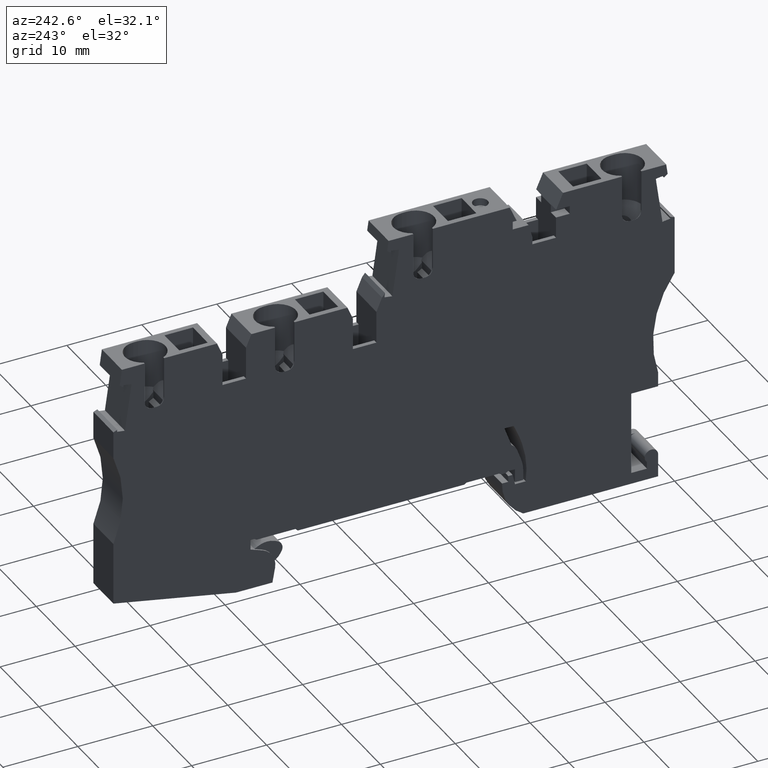
[diagram: clean part render]
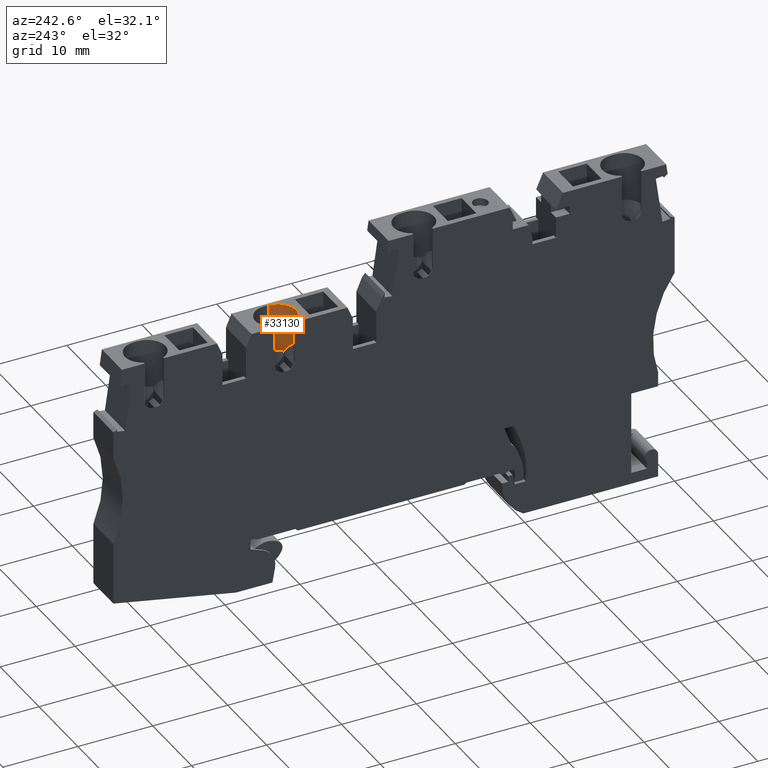
[diagram: same view with one face highlighted and labeled with its STEP entity id]
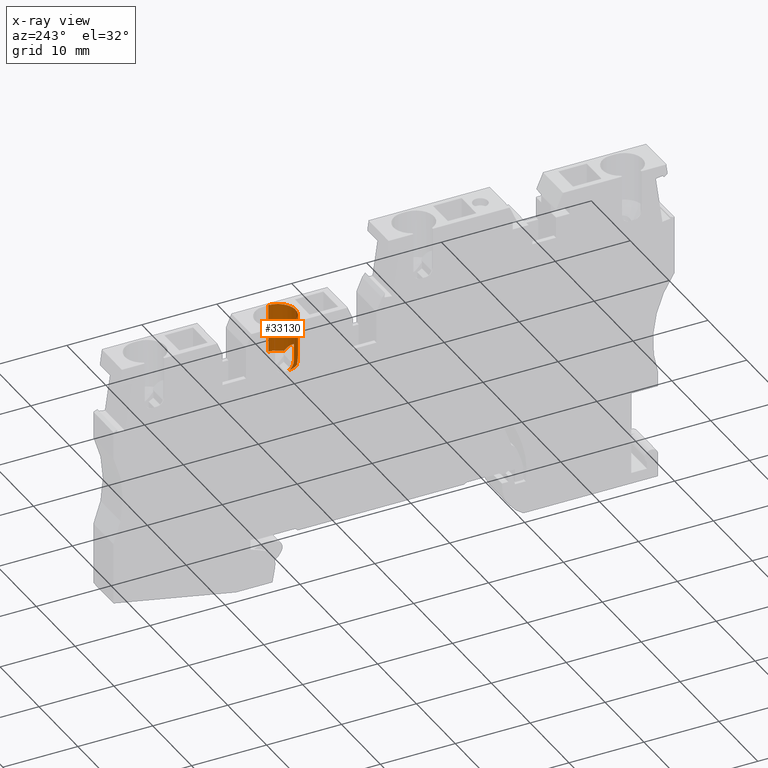
[diagram: x-ray of the same camera — body ghosted, the highlighted face saturated]
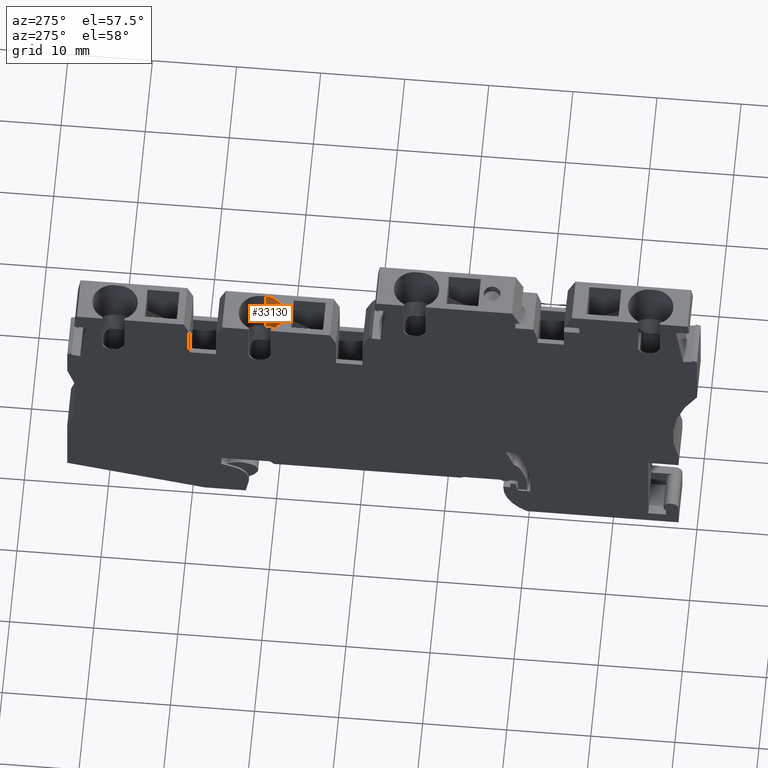
[diagram: same view with one face highlighted and labeled with its STEP entity id]
A machine part, auxiliary view. The second image highlights one B-rep face of the part: STEP entity #33130.
The next image is the same camera in x-ray: the body ghosted, the highlighted face saturated — about 0% of this face is hidden behind the body in this view.
A second angle (auxiliary view) of the same face is appended — the face is thin or edge-on in the first view.
In plain terms, the highlighted cylindrical surface (edge-blend (fillet) strip) has radius 2.4 mm, axis along (0, -0, 1).
Its self-contained STEP definition (entity closure, byte-faithful):
#11070=CARTESIAN_POINT('',(-40.7764596537314,-40.9430351956355,
0.218257577066665));
#11080=VERTEX_POINT('',#11070);
#11250=CARTESIAN_POINT('',(-42.1999644018044,-35.6304431510493,
0.218257577076328));
#11260=VERTEX_POINT('',#11250);
#11290=CARTESIAN_POINT('',(-40.2188847495888,-43.0239330669136,
0.218257577081936));
#11300=DIRECTION('',(-0.258819045103995,0.965925826288673,
-7.3252561867641E-13));
#11310=VECTOR('',#11300,1.);
#11320=LINE('',#11290,#11310);
#11330=EDGE_CURVE('',#11080,#11260,#11320,.T.);
#31710=CARTESIAN_POINT('',(-41.7423854800347,-41.2018542407414,
2.39999999987848));
#31720=DIRECTION('',(0.258819045104028,-0.965925826288665,
9.258680102874E-13));
#31730=DIRECTION('',(0.965925826288665,0.258819045104028,
-1.81460900537107E-14));
#31740=AXIS2_PLACEMENT_3D('',#31710,#31720,#31730);
#31750=CYLINDRICAL_SURFACE('',#31740,2.4);
#31760=CARTESIAN_POINT('',(-41.7423854800341,-41.2018542407436,
2.39999999987848));
#31770=DIRECTION('',(0.258819045104028,-0.965925826288665,
9.258680102874E-13));
#31780=DIRECTION('',(0.965925826288665,0.258819045104028,
-1.81460900537107E-14));
#31790=AXIS2_PLACEMENT_3D('',#31760,#31770,#31780);
#31800=CIRCLE('',#31790,2.4);
#31810=CARTESIAN_POINT('',(-41.7423854800495,-41.201854240743,
4.79999999987848));
#31820=VERTEX_POINT('',#31810);
#31830=EDGE_CURVE('',#11080,#31820,#31800,.T.);
#31840=ORIENTED_EDGE('',*,*,#31830,.T.);
#31850=ORIENTED_EDGE('',*,*,#11330,.F.);
#31860=CARTESIAN_POINT('',(-41.1848105758723,-43.2827521120146,
2.40000000001173));
#31870=DIRECTION('',(-0.258819045103995,0.965925826288674,
-7.3252561867641E-13));
#31880=DIRECTION('',(-0.965925826288674,-0.258819045103995,
2.62862846313129E-12));
#31890=AXIS2_PLACEMENT_3D('',#31860,#31870,#31880);
#31900=CYLINDRICAL_SURFACE('',#31890,2.4);
#31910=CARTESIAN_POINT('',(-43.1658902280936,-35.8892621961536,
6.11139222409441E-12));
#31920=DIRECTION('',(-2.34946865829076E-12,-1.38790441945422E-12,-1.));
#31930=DIRECTION('',(0.92718385456626,0.374606593417219,
-2.6983074813513E-12));
#31940=AXIS2_PLACEMENT_3D('',#31910,#31920,#31930);
#31950=CYLINDRICAL_SURFACE('',#31940,1.);
#31960=CARTESIAN_POINT('',(-42.1999644018044,-35.6304431510493,
0.21825757707633));
#31970=CARTESIAN_POINT('',(-42.204227483483,-35.614533113628,
0.218257577076318));
#31980=CARTESIAN_POINT('',(-42.2088938692602,-35.5986913059137,
0.218070787926176));
#31990=CARTESIAN_POINT('',(-42.2139593737237,-35.5829492050813,
0.217696164228565));
#32000=CARTESIAN_POINT('',(-42.2190248476662,-35.567207199099,
0.217321542788152));
#32010=CARTESIAN_POINT('',(-42.2244893575421,-35.5515652822202,
0.216759078520437));
#32020=CARTESIAN_POINT('',(-42.2303445313936,-35.5360565203962,
0.216011075511223));
#32030=CARTESIAN_POINT('',(-42.2361996844242,-35.5205478137212,
0.215263075161901));
#32040=CARTESIAN_POINT('',(-42.2424453782182,-35.5051726477547,
0.21432955156479));
#32050=CARTESIAN_POINT('',(-42.2490690572668,-35.4899641361473,
0.213216285575833));
#32060=CARTESIAN_POINT('',(-42.2556927273677,-35.4747556450841,
0.212103021090728));
#32070=CARTESIAN_POINT('',(-42.2626942278689,-35.4597141775795,
0.210810051593833));
#32080=CARTESIAN_POINT('',(-42.2700571124839,-35.4448715695893,
0.209346513427465));
#32090=CARTESIAN_POINT('',(-42.2774200019709,-35.4300289517782,
0.207882974292705));
#32100=CARTESIAN_POINT('',(-42.2851440989336,-35.4153855310543,
0.206248921874073));
#32110=CARTESIAN_POINT('',(-42.2932095996806,-35.400970765967,
0.204456509650887));
#32120=CARTESIAN_POINT('',(-42.3012751211231,-35.3865559638923,
0.202664092828484));
#32130=CARTESIAN_POINT('',(-42.3096818576863,-35.372370113004,
0.200713384492838));
#32140=CARTESIAN_POINT('',(-42.3184073826512,-35.3584394134079,
0.198619041846399));
#32150=CARTESIAN_POINT('',(-42.3271329464449,-35.3445086518198,
0.196524689880089));
#32160=CARTESIAN_POINT('',(-42.3361771067464,-35.3308332889188,
0.194286779219425));
#32170=CARTESIAN_POINT('',(-42.3455157228105,-35.317435586872,
0.191921828812602));
#32180=CARTESIAN_POINT('',(-42.3548532824116,-35.3040394004862,
0.189557145948912));
#32190=CARTESIAN_POINT('',(-42.364477985342,-35.2909274025931,
0.187067547625105));
#32200=CARTESIAN_POINT('',(-42.3744491204836,-35.2780167682067,
0.184448110966606));
#32210=CARTESIAN_POINT('',(-42.3943804570454,-35.2522096564258,
0.179212109959533));
#32220=CARTESIAN_POINT('',(-42.4156023477622,-35.227345521501,
0.173480177015928));
#32230=CARTESIAN_POINT('',(-42.4379851644682,-35.2035842700472,
0.167378541341165));
#32240=CARTESIAN_POINT('',(-42.4603677395642,-35.179823275083,
0.16127697153017));
#32250=CARTESIAN_POINT('',(-42.4839074985372,-35.1571693987732,
0.154807334904369));
#32260=CARTESIAN_POINT('',(-42.5084432647447,-35.1357613730718,
0.148113792817894));
#32270=CARTESIAN_POINT('',(-42.5329791279622,-35.1143532627271,
0.141420224266386));
#32280=CARTESIAN_POINT('',(-42.5585070323341,-35.0941943030852,
0.134504457875472));
#32290=CARTESIAN_POINT('',(-42.5848455731732,-35.0753905176998,
0.127516013844028));
#32300=CARTESIAN_POINT('',(-42.5980147162989,-35.0659887158856,
0.124021825603387));
#32310=CARTESIAN_POINT('',(-42.6113858981249,-35.0569254331861,
0.120509571683956));
#32320=CARTESIAN_POINT('',(-42.6249354189317,-35.0482105363579,
0.116997504504122));
#32330=CARTESIAN_POINT('',(-42.6384753427053,-35.0395018122317,
0.113487924897546));
#32340=CARTESIAN_POINT('',(-42.6522244197873,-35.0311198014287,
0.109970314048652));
#32350=CARTESIAN_POINT('',(-42.6662167158213,-35.0230483766298,
0.106448833252129));
#32360=CARTESIAN_POINT('',(-42.6941928125714,-35.0069104275372,
0.0994080096998306));
#32370=CARTESIAN_POINT('',(-42.7230685768494,-34.992063114961,
0.0923711029973626));
#32380=CARTESIAN_POINT('',(-42.7526775918733,-34.9786276276892,
0.0854804788620175));
#32390=CARTESIAN_POINT('',(-42.7822863788821,-34.9651922438823,
0.0785899077904784));
#32400=CARTESIAN_POINT('',(-42.8126239348151,-34.9531709756668,
0.0718471964589863));
#32410=CARTESIAN_POINT('',(-42.8434990858915,-34.9426556509298,
0.0653881134611166));
#32420=CARTESIAN_POINT('',(-42.874374427511,-34.9321402612985,
0.0589289906015884));
#32430=CARTESIAN_POINT('',(-42.9057821055037,-34.9231325436183,
0.0527549957804911));
#32440=CARTESIAN_POINT('',(-42.9375203477784,-34.9156877522772,
0.0469850169106553));
#32450=CARTESIAN_POINT('',(-42.9533892892696,-34.911965398746,
0.0441000601352121));
#32460=CARTESIAN_POINT('',(-42.9693402681816,-34.9086333151329,
0.0413158837990265));
#32470=CARTESIAN_POINT('',(-42.9853482307542,-34.9056949197577,
0.0386451672742809));
#32480=CARTESIAN_POINT('',(-43.0013525499218,-34.9027571931599,
0.0359750586034156));
#32490=CARTESIAN_POINT('',(-43.0174166512202,-34.9002110759574,
0.0334174451451331));
#32500=CARTESIAN_POINT('',(-43.0335986468737,-34.8980513520148,
0.0309723698870836));
#32510=CARTESIAN_POINT('',(-43.0497738592711,-34.8958925333968,
0.0285283195688453));
#32520=CARTESIAN_POINT('',(-43.0660370510208,-34.8941252343587,
0.0262016939234549));
#32530=CARTESIAN_POINT('',(-43.0823575311635,-34.8927571592652,
0.0240055871550736));
#32540=CARTESIAN_POINT('',(-43.0986779972089,-34.8913890853535,
0.0218094822836462));
#32550=CARTESIAN_POINT('',(-43.1150554744752,-34.8904202666188,
0.0197439478239485));
#32560=CARTESIAN_POINT('',(-43.1314583100732,-34.8898551504402,
0.0178202778390958));
#32570=CARTESIAN_POINT('',(-43.1478611575792,-34.8892900338512,
0.0158966064577077));
#32580=CARTESIAN_POINT('',(-43.1642890702478,-34.889128628071,
0.014114842600897));
#32590=CARTESIAN_POINT('',(-43.1807103513256,-34.8893720202106,
0.012484190778929));
#32600=CARTESIAN_POINT('',(-43.1971331762188,-34.8896154352321,
0.0108533856543329));
#32610=CARTESIAN_POINT('',(-43.2135425573902,-34.8902633032058,
0.00937428352049066));
#32620=CARTESIAN_POINT('',(-43.2299263099388,-34.8913146122486,
0.00805230250549231));
#32630=CARTESIAN_POINT('',(-43.2463173289288,-34.8923663875627,
0.0067297351719768));
#32640=CARTESIAN_POINT('',(-43.2627139175274,-34.8938243265012,
0.00556204332457638));
#32650=CARTESIAN_POINT('',(-43.2790816352611,-34.8956889953559,
0.00455663736845432));
#32660=CARTESIAN_POINT('',(-43.2954493335164,-34.8975536619915,
0.00355123260880988));
#32670=CARTESIAN_POINT('',(-43.3117878050229,-34.8998250275517,
0.00270814560071264));
#32680=CARTESIAN_POINT('',(-43.3280623147327,-34.9024997048138,
0.00203230099548909));
#32690=CARTESIAN_POINT('',(-43.3606280521824,-34.9078518069068,
0.000679917522011864));
#32700=CARTESIAN_POINT('',(-43.3928636869195,-34.9148033707391,
5.29658217069467E-12));
#32710=CARTESIAN_POINT('',(-43.4247092731982,-34.9233363698651,
5.39244935401366E-12));
#32720=B_SPLINE_CURVE_WITH_KNOTS('',3,(#31960,#31970,#31980,#31990,
#32000,#32010,#32020,#32030,#32040,#32050,#32060,#32070,#32080,#32090,
#32100,#32110,#32120,#32130,#32140,#32150,#32160,#32170,#32180,#32190,
#32200,#32210,#32220,#32230,#32240,#32250,#32260,#32270,#32280,#32290,
#32300,#32310,#32320,#32330,#32340,#32350,#32360,#32370,#32380,#32390,
#32400,#32410,#32420,#32430,#32440,#32450,#32460,#32470,#32480,#32490,
#32500,#32510,#32520,#32530,#32540,#32550,#32560,#32570,#32580,#32590,
#32600,#32610,#32620,#32630,#32640,#32650,#32660,#32670,#32680,#32690,
#32700,#32710),.UNSPECIFIED.,.F.,.F.,(4,3,3,3,3,3,3,3,3,3,3,3,3,3,3,3,3,
3,3,3,3,3,3,3,3,4),(0.,0.0495222692515612,0.0992298942329369,
0.149064989412264,0.198959033159922,0.248837074435097,0.29862150820378,
0.34823577112758,0.397706633074577,0.497087658472449,0.596803861500528,
0.696371962687564,0.745940559031688,0.795428028473204,0.894905849219936,
0.994675469480005,1.09424413440871,1.14381654088099,1.19327271568619,
1.24281586857667,1.29239520600229,1.34194342067888,1.39140236455022,
1.44088137071489,1.49040354021155,1.58933923289458),.UNSPECIFIED.);
#32730=SURFACE_CURVE('',#32720,(#31900,#31950),.CURVE_3D.);
#32740=CARTESIAN_POINT('',(-43.4247092731898,-34.9233363698867,
-7.93070159872241E-12));
#32750=VERTEX_POINT('',#32740);
#32760=EDGE_CURVE('',#11260,#32750,#32730,.T.);
#32770=ORIENTED_EDGE('',*,*,#32760,.F.);
#32780=CARTESIAN_POINT('',(-43.4247092731905,-34.923336369863,
2.40000000000539));
#32790=DIRECTION('',(-0.258819045103882,0.965925826288704,
-7.32525618676718E-13));
#32800=DIRECTION('',(-0.965925826288704,-0.258819045103882,
2.6286284631312E-12));
#32810=AXIS2_PLACEMENT_3D('',#32780,#32790,#32800);
#32820=CIRCLE('',#32810,2.40000000000103);
#32830=CARTESIAN_POINT('',(-41.794337261143,-34.4864795058706,
0.693822054212047));
#32840=VERTEX_POINT('',#32830);
#32850=EDGE_CURVE('',#32840,#32750,#32820,.T.);
#32860=ORIENTED_EDGE('',*,*,#32850,.T.);
#32870=CARTESIAN_POINT('',(-44.3615518413001,-31.4269923070097,
2.40000000000274));
#32880=DIRECTION('',(0.766044443118074,0.642787609687618,
-2.69192514900767E-12));
#32890=DIRECTION('',(-0.642787609687618,0.766044443118074,
4.4701271944008E-13));
#32900=AXIS2_PLACEMENT_3D('',#32870,#32880,#32890);
#32910=ELLIPSE('',#32900,5.67888379956745,2.4);
#32920=CARTESIAN_POINT('',(-41.7943372611354,-34.4864795058655,
4.10617794579008));
#32930=VERTEX_POINT('',#32920);
#32940=EDGE_CURVE('',#32930,#32840,#32910,.T.);
#32950=ORIENTED_EDGE('',*,*,#32940,.T.);
#32960=CARTESIAN_POINT('',(-43.4247092731915,-34.923336369863,
2.40000000000539));
#32970=DIRECTION('',(0.258819045103995,-0.965925826288673,
7.3252561867641E-13));
#32980=DIRECTION('',(-0.965925826288673,-0.258819045103998,
2.62862846313129E-12));
#32990=AXIS2_PLACEMENT_3D('',#32960,#32970,#32980);
#33000=CIRCLE('',#32990,2.4);
#33010=CARTESIAN_POINT('',(-43.4247092731863,-34.9233363698582,
4.80000000000539));
#33020=VERTEX_POINT('',#33010);
#33030=EDGE_CURVE('',#32930,#33020,#33000,.T.);
#33040=ORIENTED_EDGE('',*,*,#33030,.F.);
#33050=CARTESIAN_POINT('',(-41.1848105758667,-43.2827521120113,
4.80000000001173));
#33060=DIRECTION('',(-0.258819045103995,0.965925826288674,
-7.3252561867641E-13));
#33070=VECTOR('',#33060,1.);
#33080=LINE('',#33050,#33070);
#33090=EDGE_CURVE('',#31820,#33020,#33080,.T.);
#33100=ORIENTED_EDGE('',*,*,#33090,.T.);
#33110=EDGE_LOOP('',(#33100,#33040,#32950,#32860,#32770,#31850,#31840));
#33120=FACE_OUTER_BOUND('',#33110,.T.);
#33130=ADVANCED_FACE('',(#33120),#31750,.F.);